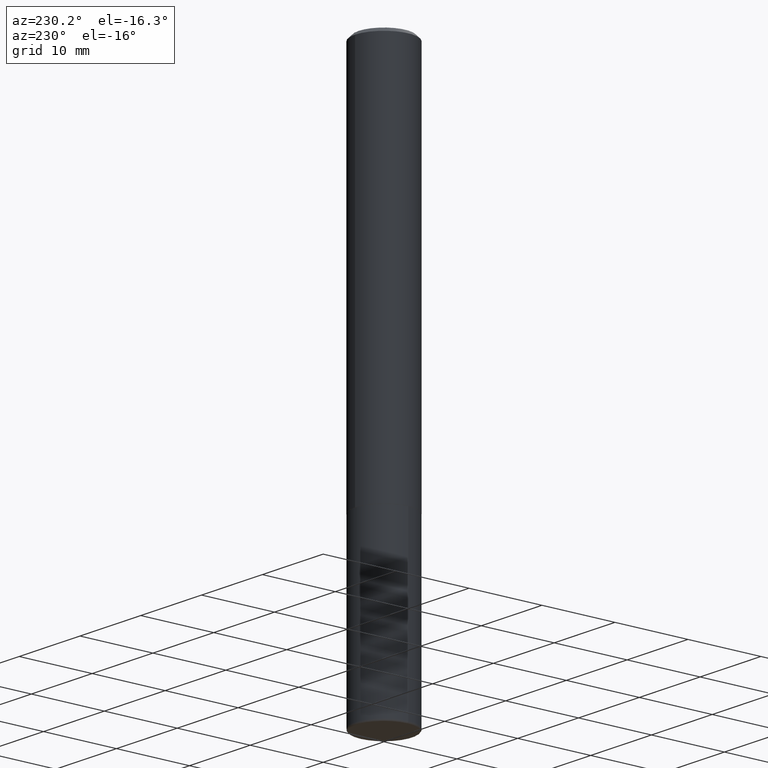
[diagram: clean part render]
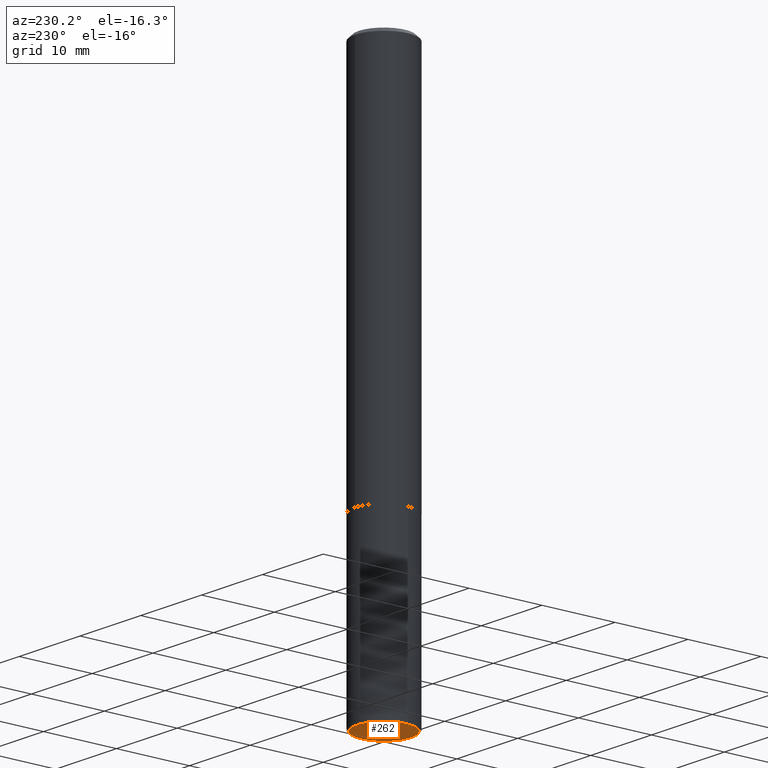
[diagram: same view with one face highlighted and labeled with its STEP entity id]
A machine part, auxiliary view. The second image highlights one B-rep face of the part: STEP entity #262.
In plain terms, the highlighted planar face has unit normal (0, -0, -1).
Its self-contained STEP definition (entity closure, byte-faithful):
#15 = DIRECTION ( 'NONE',  ( -1.000000000000000000, 6.982962677686265922E-15, -4.876176775795935793E-29 ) ) ;
#16 = PLANE ( 'NONE',  #151 ) ;
#40 = ORIENTED_EDGE ( 'NONE', *, *, #345, .F. ) ;
#41 = AXIS2_PLACEMENT_3D ( 'NONE', #42, #51, #402 ) ;
#42 = CARTESIAN_POINT ( 'NONE',  ( 7.336406418555409790E-29, -1.047444401652943635E-14, -3.000000000000000444 ) ) ;
#51 = DIRECTION ( 'NONE',  ( -2.445468806185136597E-29, 3.491481338843145583E-15, 1.000000000000000000 ) ) ;
#66 = EDGE_LOOP ( 'NONE', ( #40, #161 ) ) ;
#103 = AXIS2_PLACEMENT_3D ( 'NONE', #412, #148, #116 ) ;
#106 = CARTESIAN_POINT ( 'NONE',  ( 0.1462500000000000189, -1.149570230814105460E-14, -3.000000000000000444 ) ) ;
#116 = DIRECTION ( 'NONE',  ( 1.000000000000000000, -6.982962677686270655E-15, 0.000000000000000000 ) ) ;
#141 = DIRECTION ( 'NONE',  ( 2.438088387897960049E-29, -3.491481338843145188E-15, -1.000000000000000000 ) ) ;
#148 = DIRECTION ( 'NONE',  ( -2.445468806185136597E-29, 3.491481338843145583E-15, 1.000000000000000000 ) ) ;
#151 = AXIS2_PLACEMENT_3D ( 'NONE', #179, #141, #15 ) ;
#161 = ORIENTED_EDGE ( 'NONE', *, *, #170, .F. ) ;
#162 = CARTESIAN_POINT ( 'NONE',  ( -0.1462500000000000189, -9.382290721998072185E-15, -3.000000000000000444 ) ) ;
#170 = EDGE_CURVE ( 'NONE', #387, #312, #351, .T. ) ;
#179 = CARTESIAN_POINT ( 'NONE',  ( 7.336406418555409790E-29, -1.047444401652943635E-14, -3.000000000000000444 ) ) ;
#251 = CIRCLE ( 'NONE', #103, 0.1462500000000000189 ) ;
#262 = ADVANCED_FACE ( 'NONE', ( #298 ), #16, .T. ) ;
#298 = FACE_OUTER_BOUND ( 'NONE', #66, .T. ) ;
#312 = VERTEX_POINT ( 'NONE', #106 ) ;
#345 = EDGE_CURVE ( 'NONE', #312, #387, #251, .T. ) ;
#351 = CIRCLE ( 'NONE', #41, 0.1462500000000000189 ) ;
#387 = VERTEX_POINT ( 'NONE', #162 ) ;
#402 = DIRECTION ( 'NONE',  ( 1.000000000000000000, -6.982962677686270655E-15, 0.000000000000000000 ) ) ;
#412 = CARTESIAN_POINT ( 'NONE',  ( 7.336406418555409790E-29, -1.047444401652943635E-14, -3.000000000000000444 ) ) ;